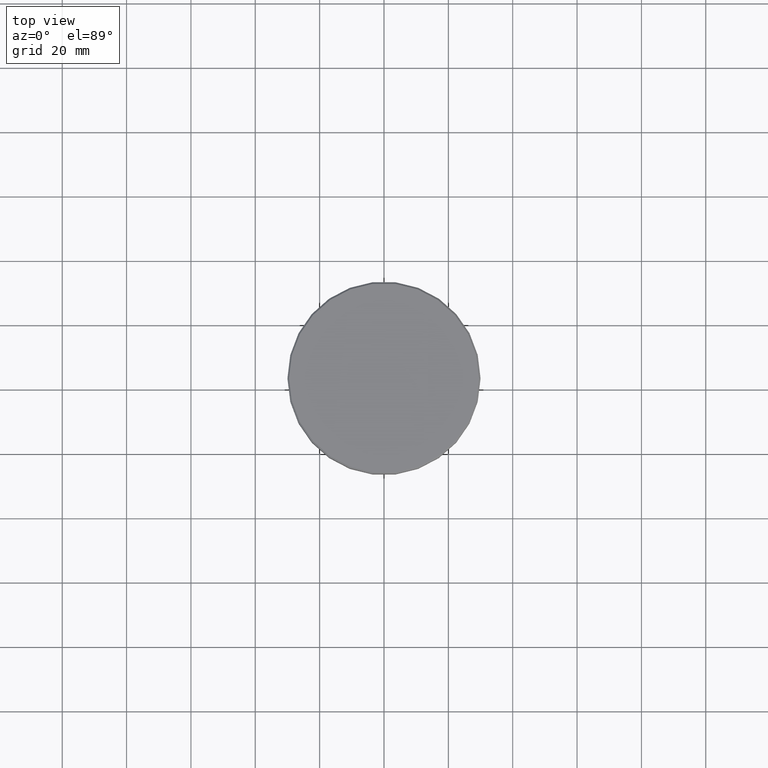
[diagram: clean part render]
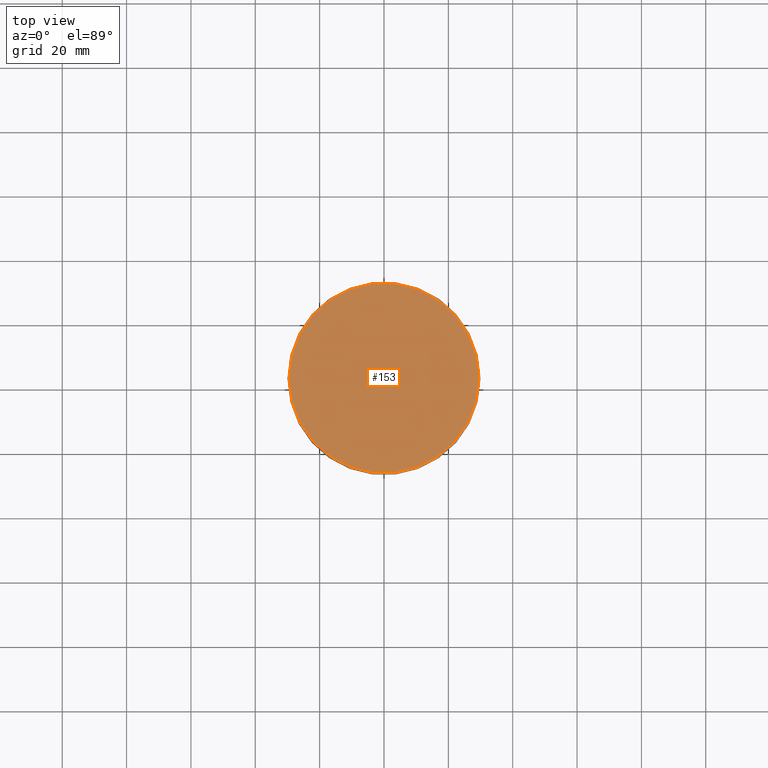
[diagram: same view with one face highlighted and labeled with its STEP entity id]
A machine part, top view. The second image highlights one B-rep face of the part: STEP entity #153.
In plain terms, the highlighted planar face has unit normal (0, -0, 1).
Its self-contained STEP definition (entity closure, byte-faithful):
#1 = DIRECTION ( 'NONE',  ( 1.000000000000000000, 0.000000000000000000, 0.000000000000000000 ) ) ;
#121 = CARTESIAN_POINT ( 'NONE',  ( 0.000000000000000000, 0.000000000000000000, 0.000000000000000000 ) ) ;
#153 = ADVANCED_FACE ( 'NONE', ( #875 ), #1160, .T. ) ;
#211 = DIRECTION ( 'NONE',  ( -0.000000000000000000, -0.000000000000000000, 1.000000000000000000 ) ) ;
#331 = DIRECTION ( 'NONE',  ( 0.000000000000000000, -0.000000000000000000, 1.000000000000000000 ) ) ;
#401 = CIRCLE ( 'NONE', #902, 29.50000000000005329 ) ;
#500 = CARTESIAN_POINT ( 'NONE',  ( 0.000000000000000000, 0.000000000000000000, 0.000000000000000000 ) ) ;
#559 = EDGE_LOOP ( 'NONE', ( #588, #1171 ) ) ;
#588 = ORIENTED_EDGE ( 'NONE', *, *, #700, .T. ) ;
#642 = AXIS2_PLACEMENT_3D ( 'NONE', #776, #331, #1057 ) ;
#700 = EDGE_CURVE ( 'NONE', #859, #825, #1019, .T. ) ;
#737 = CARTESIAN_POINT ( 'NONE',  ( 29.50000000000005329, 3.643324227463378546E-15, 0.000000000000000000 ) ) ;
#758 = AXIS2_PLACEMENT_3D ( 'NONE', #121, #916, #1 ) ;
#776 = CARTESIAN_POINT ( 'NONE',  ( 0.000000000000000000, 0.000000000000000000, 0.000000000000000000 ) ) ;
#825 = VERTEX_POINT ( 'NONE', #737 ) ;
#848 = CARTESIAN_POINT ( 'NONE',  ( -29.50000000000005329, 0.000000000000000000, 0.000000000000000000 ) ) ;
#849 = EDGE_CURVE ( 'NONE', #825, #859, #401, .T. ) ;
#859 = VERTEX_POINT ( 'NONE', #848 ) ;
#875 = FACE_OUTER_BOUND ( 'NONE', #559, .T. ) ;
#902 = AXIS2_PLACEMENT_3D ( 'NONE', #500, #211, #1143 ) ;
#916 = DIRECTION ( 'NONE',  ( -0.000000000000000000, -0.000000000000000000, 1.000000000000000000 ) ) ;
#1019 = CIRCLE ( 'NONE', #758, 29.50000000000005329 ) ;
#1057 = DIRECTION ( 'NONE',  ( 1.000000000000000000, 0.000000000000000000, 0.000000000000000000 ) ) ;
#1143 = DIRECTION ( 'NONE',  ( 1.000000000000000000, 0.000000000000000000, 0.000000000000000000 ) ) ;
#1160 = PLANE ( 'NONE',  #642 ) ;
#1171 = ORIENTED_EDGE ( 'NONE', *, *, #849, .T. ) ;